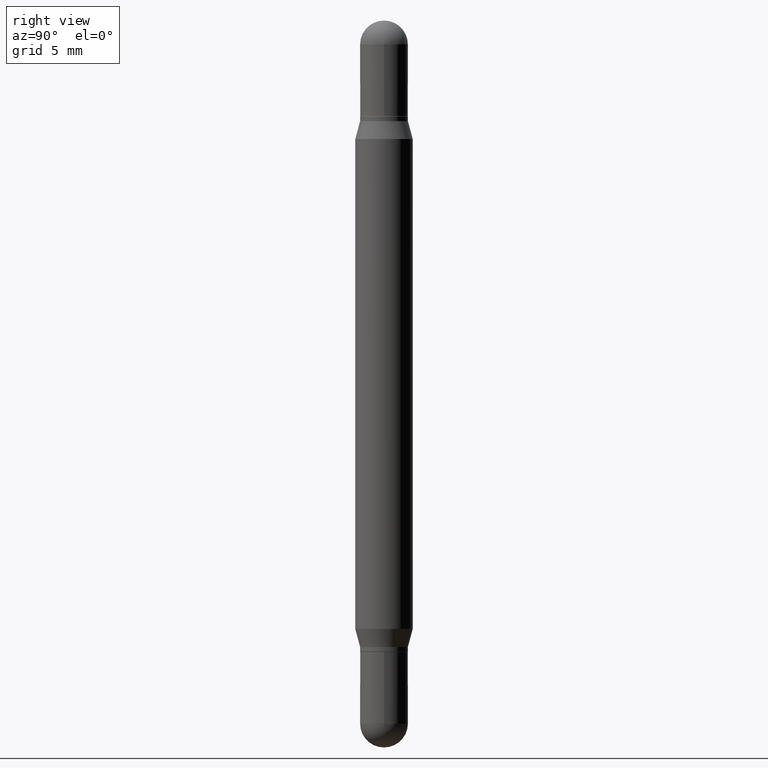
[diagram: clean part render]
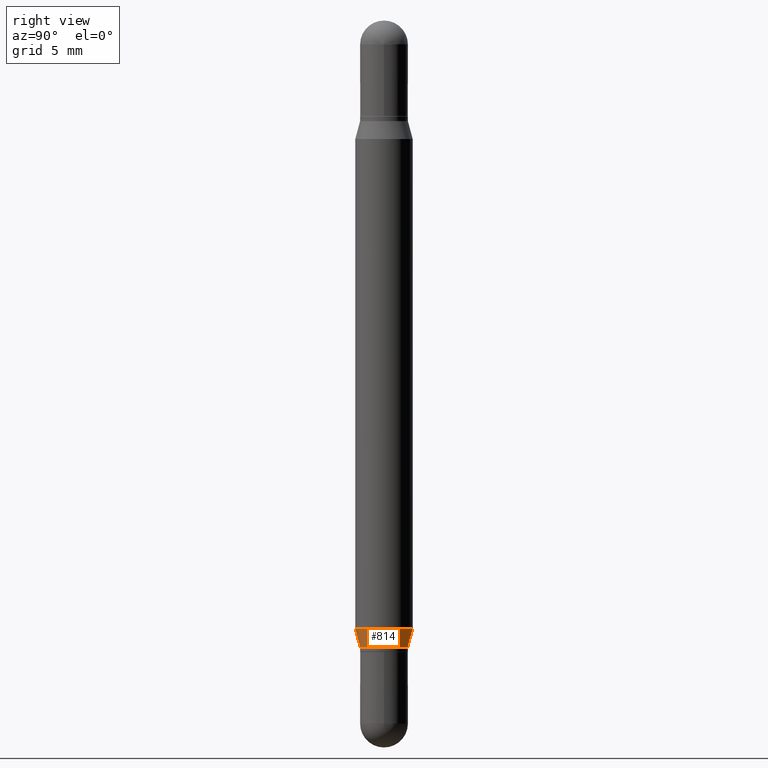
[diagram: same view with one face highlighted and labeled with its STEP entity id]
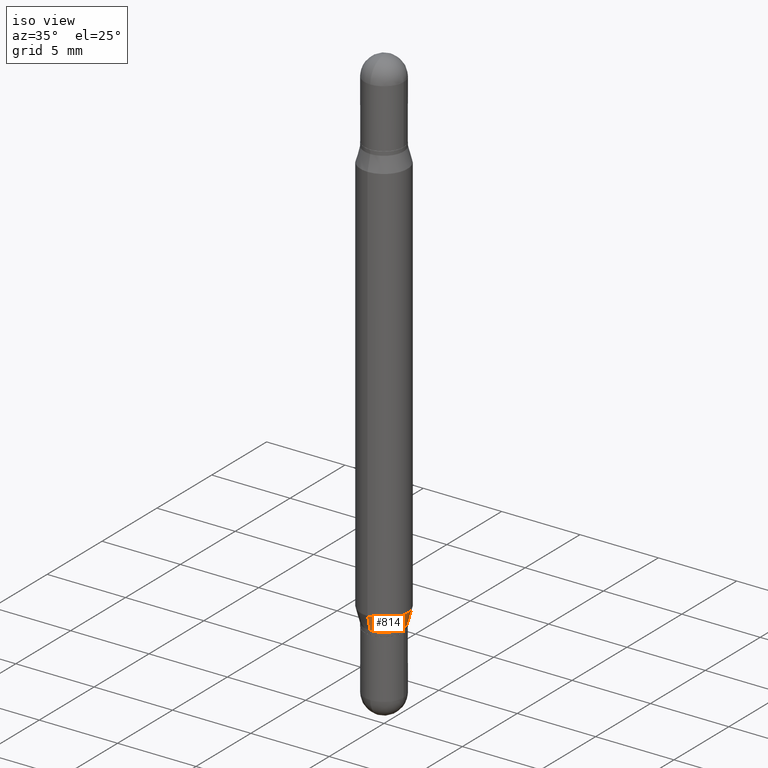
[diagram: same view with one face highlighted and labeled with its STEP entity id]
A machine part, right view. The second image highlights one B-rep face of the part: STEP entity #814.
A second angle (iso view) of the same face is appended — the face is thin or edge-on in the first view.
In plain terms, the highlighted conical surface has half-angle 15 deg.
Its self-contained STEP definition (entity closure, byte-faithful):
#16 = CARTESIAN_POINT ( 'NONE',  ( 4.051124067684271599E-16, 0.05904999999999562682, -1.252339299545446538 ) ) ;
#27 = ORIENTED_EDGE ( 'NONE', *, *, #47, .T. ) ;
#47 = EDGE_CURVE ( 'NONE', #130, #967, #773, .T. ) ;
#117 = DIRECTION ( 'NONE',  ( -2.445838769445875239E-29, 3.490951530396766445E-15, 1.000000000000000000 ) ) ;
#125 = AXIS2_PLACEMENT_3D ( 'NONE', #198, #117, #325 ) ;
#130 = VERTEX_POINT ( 'NONE', #717 ) ;
#168 = CARTESIAN_POINT ( 'NONE',  ( 3.152930757692677619E-29, -4.500185617834471368E-15, -1.289099999999999913 ) ) ;
#175 = EDGE_CURVE ( 'NONE', #633, #644, #613, .T. ) ;
#198 = CARTESIAN_POINT ( 'NONE',  ( 3.063020011328943986E-29, -4.371855794324190726E-15, -1.252339299545446316 ) ) ;
#280 = LINE ( 'NONE', #535, #615 ) ;
#288 = DIRECTION ( 'NONE',  ( -2.445838769445875239E-29, 3.490951530396766445E-15, 1.000000000000000000 ) ) ;
#305 = CARTESIAN_POINT ( 'NONE',  ( 3.152930757692677619E-29, -4.500185617834471368E-15, -1.289099999999999913 ) ) ;
#325 = DIRECTION ( 'NONE',  ( -6.982962677686265922E-15, -1.000000000000000000, 4.626330217890369336E-15 ) ) ;
#354 = AXIS2_PLACEMENT_3D ( 'NONE', #305, #288, #658 ) ;
#468 = EDGE_CURVE ( 'NONE', #130, #633, #280, .T. ) ;
#493 = ORIENTED_EDGE ( 'NONE', *, *, #823, .T. ) ;
#530 = CARTESIAN_POINT ( 'NONE',  ( 3.495870259940004563E-16, 0.04919999999999542795, -1.289100000000000135 ) ) ;
#535 = CARTESIAN_POINT ( 'NONE',  ( -3.435617637421321808E-16, -0.04920000000000441381, -1.289099999999999691 ) ) ;
#607 = EDGE_LOOP ( 'NONE', ( #27, #493, #982, #918 ) ) ;
#613 = CIRCLE ( 'NONE', #125, 0.05904999999999999832 ) ;
#615 = VECTOR ( 'NONE', #866, 39.37007874015748854 ) ;
#633 = VERTEX_POINT ( 'NONE', #963 ) ;
#634 = LINE ( 'NONE', #1079, #1101 ) ;
#644 = VERTEX_POINT ( 'NONE', #16 ) ;
#658 = DIRECTION ( 'NONE',  ( -6.982962677686266711E-15, -1.000000000000000000, 5.552536572488348841E-15 ) ) ;
#709 = CONICAL_SURFACE ( 'NONE', #354, 0.04919999999999991741, 0.2617993877991506291 ) ;
#717 = CARTESIAN_POINT ( 'NONE',  ( -3.435617637421321808E-16, -0.04920000000000441381, -1.289099999999999691 ) ) ;
#724 = FACE_OUTER_BOUND ( 'NONE', #607, .T. ) ;
#768 = DIRECTION ( 'NONE',  ( -2.445838769445875239E-29, 3.490951530396766445E-15, 1.000000000000000000 ) ) ;
#773 = CIRCLE ( 'NONE', #1023, 0.04919999999999991741 ) ;
#814 = ADVANCED_FACE ( 'NONE', ( #724 ), #709, .T. ) ;
#823 = EDGE_CURVE ( 'NONE', #967, #644, #634, .T. ) ;
#866 = DIRECTION ( 'NONE',  ( -1.807323732225332900E-15, -0.2588190451025185190, 0.9659258262890689783 ) ) ;
#870 = DIRECTION ( 'NONE',  ( -6.982962677686266711E-15, -1.000000000000000000, 5.552536572488348841E-15 ) ) ;
#918 = ORIENTED_EDGE ( 'NONE', *, *, #468, .F. ) ;
#963 = CARTESIAN_POINT ( 'NONE',  ( -4.123439461173433657E-16, -0.05905000000000436983, -1.252339299545446094 ) ) ;
#967 = VERTEX_POINT ( 'NONE', #530 ) ;
#982 = ORIENTED_EDGE ( 'NONE', *, *, #175, .F. ) ;
#1023 = AXIS2_PLACEMENT_3D ( 'NONE', #168, #768, #870 ) ;
#1074 = DIRECTION ( 'NONE',  ( 1.839019923739602682E-15, 0.2588190451025252914, 0.9659258262890670910 ) ) ;
#1079 = CARTESIAN_POINT ( 'NONE',  ( 3.495870259940001604E-16, 0.04919999999999541407, -1.289100000000000135 ) ) ;
#1101 = VECTOR ( 'NONE', #1074, 39.37007874015748143 ) ;